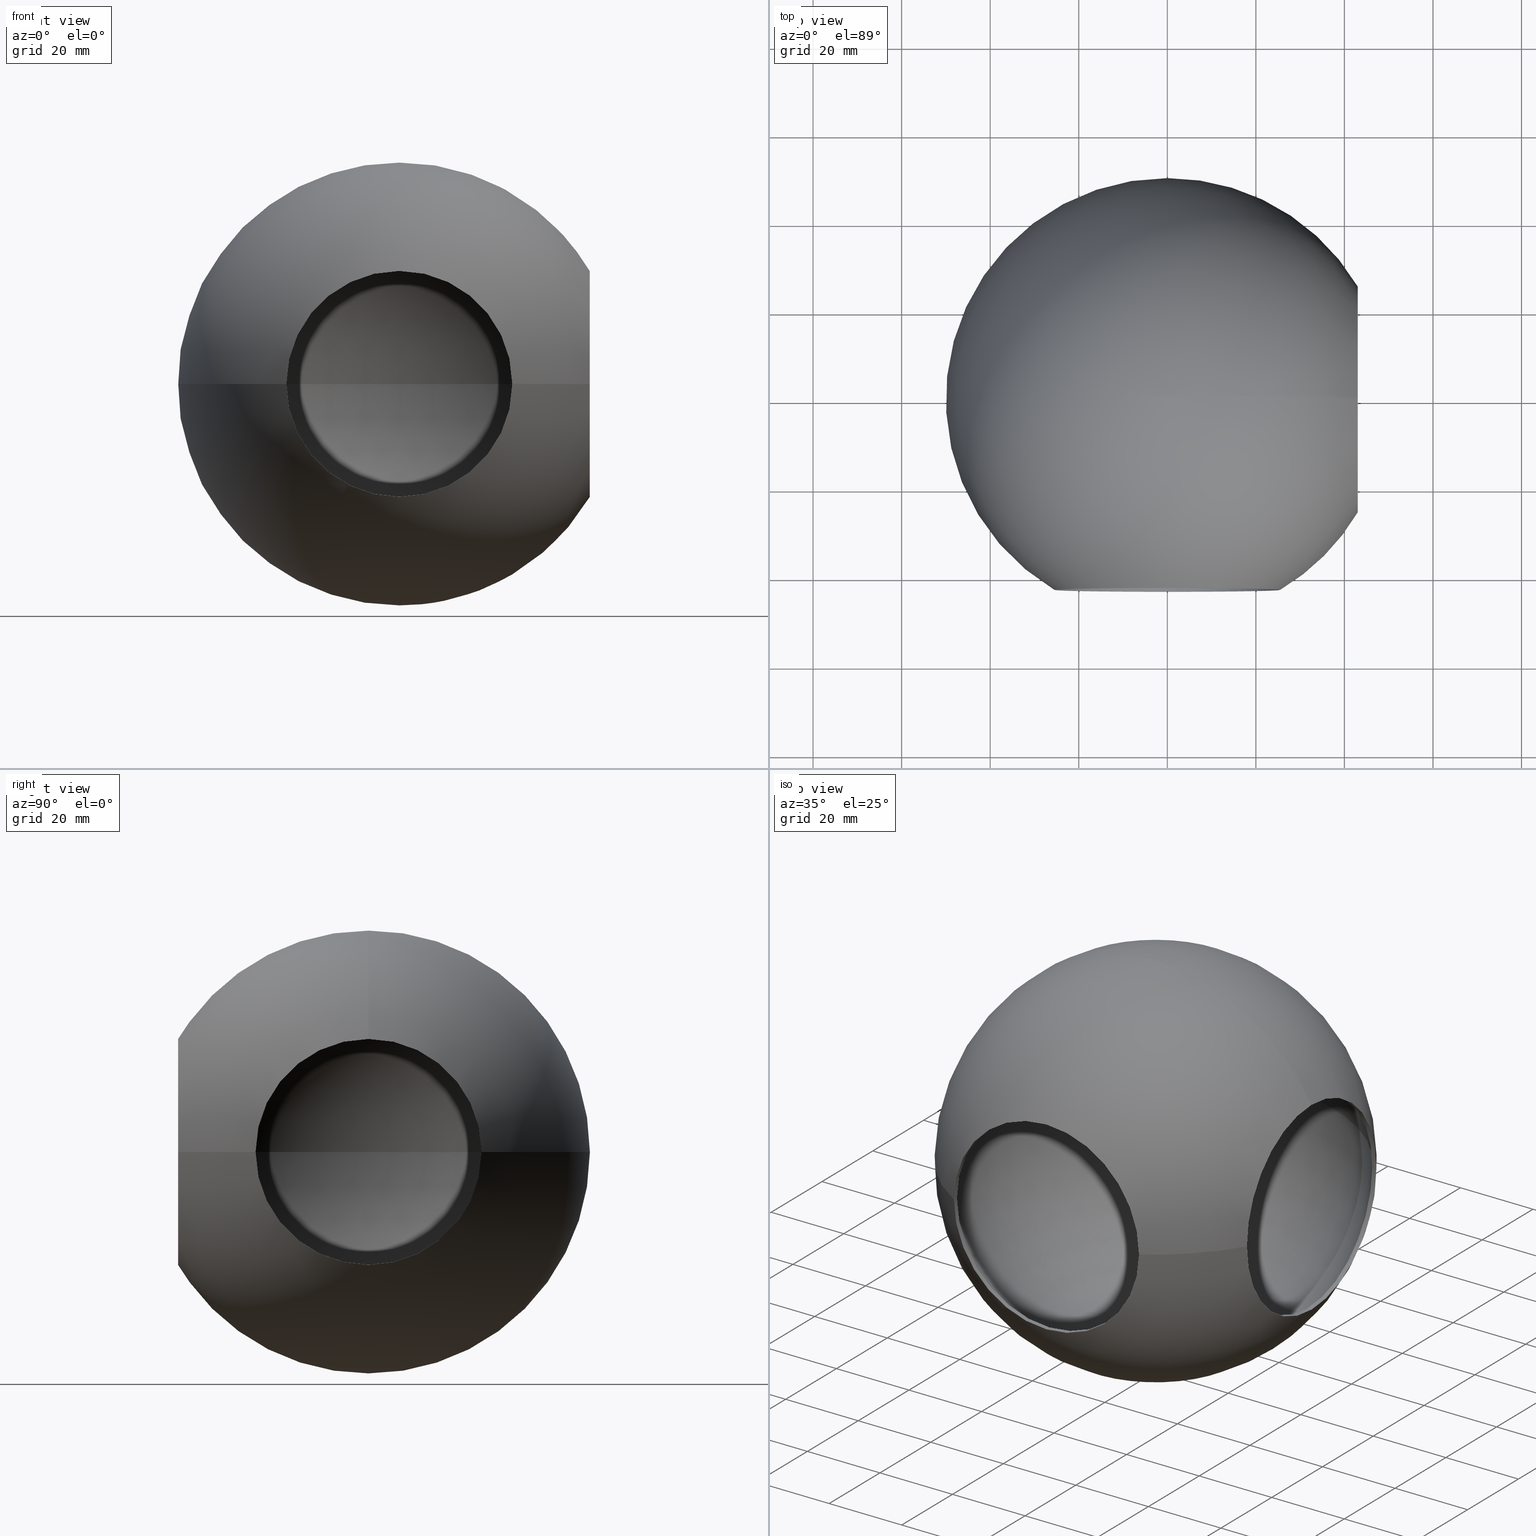
[diagram: canonical four-view strip — front | top / right | iso, engineering-drawing reading convention]
A machine part, canonical four-view strip (front | top / right | iso — engineering-drawing reading convention). The complete STEP part file that produces these views, byte-faithful:
ISO-10303-21;
HEADER;
FILE_DESCRIPTION (( 'STEP AP214' ),
    '1' );
FILE_NAME ('���. KRT313.STEP',
    '2014-07-01T06:49:35',
    ( '' ),
    ( '' ),
    'SwSTEP 2.0',
    'SolidWorks 2014',
    '' );
FILE_SCHEMA (( 'AUTOMOTIVE_DESIGN' ));
ENDSEC;

DATA;
#1 = ORIENTED_EDGE ( 'NONE', *, *, #179, .T. ) ;
#2 = VECTOR ( 'NONE', #336, 1000.000000000000000 ) ;
#3 = DIRECTION ( 'NONE',  ( 0.0000000000000000000, 1.000000000000000000, 0.0000000000000000000 ) ) ;
#4 = ORIENTED_EDGE ( 'NONE', *, *, #158, .T. ) ;
#5 = AXIS2_PLACEMENT_3D ( 'NONE', #328, #26, #28 ) ;
#6 = EDGE_CURVE ( 'NONE', #330, #152, #119, .T. ) ;
#7 = VERTEX_POINT ( 'NONE', #237 ) ;
#8 = EDGE_CURVE ( 'NONE', #208, #318, #205, .T. ) ;
#9 = DIRECTION ( 'NONE',  ( 0.0000000000000000000, -8.881784197001251300E-016, 1.000000000000000000 ) ) ;
#10 = ORIENTED_EDGE ( 'NONE', *, *, #311, .F. ) ;
#11 = DIRECTION ( 'NONE',  ( 0.0000000000000000000, -8.881784197001251300E-016, 1.000000000000000000 ) ) ;
#12 = CARTESIAN_POINT ( 'NONE',  ( 41.84196458102798700, -1.387778780781445700E-014, -25.50000000000000000 ) ) ;
#13 = PRESENTATION_LAYER_ASSIGNMENT (  '', '', ( #265 ) ) ;
#14 = ORIENTED_EDGE ( 'NONE', *, *, #232, .T. ) ;
#15 = DIRECTION ( 'NONE',  ( 0.0000000000000000000, 0.0000000000000000000, 1.000000000000000000 ) ) ;
#16 = UNCERTAINTY_MEASURE_WITH_UNIT (LENGTH_MEASURE( 1.000000000000000100E-005 ), #246, 'distance_accuracy_value', 'NONE');
#17 = CIRCLE ( 'NONE', #314, 25.50000000000000000 ) ;
#18 = EDGE_LOOP ( 'NONE', ( #65, #238, #185, #347, #280, #81 ) ) ;
#19 =( LENGTH_UNIT ( ) NAMED_UNIT ( * ) SI_UNIT ( .MILLI., .METRE. ) );
#20 = DIRECTION ( 'NONE',  ( -0.0000000000000000000, -1.000000000000000000, -0.0000000000000000000 ) ) ;
#21 = AXIS2_PLACEMENT_3D ( 'NONE', #107, #136, #248 ) ;
#22 = DIRECTION ( 'NONE',  ( -1.000000000000000000, 0.0000000000000000000, -1.224646799147353200E-016 ) ) ;
#23 = DIRECTION ( 'NONE',  ( 0.0000000000000000000, 0.0000000000000000000, 1.000000000000000000 ) ) ;
#24 = CARTESIAN_POINT ( 'NONE',  ( 0.0000000000000000000, 0.0000000000000000000, 0.0000000000000000000 ) ) ;
#25 = ORIENTED_EDGE ( 'NONE', *, *, #124, .T. ) ;
#26 = DIRECTION ( 'NONE',  ( 0.0000000000000000000, 0.0000000000000000000, -1.000000000000000000 ) ) ;
#27 = AXIS2_PLACEMENT_3D ( 'NONE', #130, #160, #351 ) ;
#28 = DIRECTION ( 'NONE',  ( 1.000000000000000000, 0.0000000000000000000, 0.0000000000000000000 ) ) ;
#29 = EDGE_CURVE ( 'NONE', #318, #45, #340, .T. ) ;
#30 = FACE_OUTER_BOUND ( 'NONE', #334, .T. ) ;
#31 = DIRECTION ( 'NONE',  ( 1.000000000000000000, 0.0000000000000000000, 0.0000000000000000000 ) ) ;
#32 = VERTEX_POINT ( 'NONE', #214 ) ;
#33 = EDGE_CURVE ( 'NONE', #275, #208, #129, .T. ) ;
#34 = ORIENTED_EDGE ( 'NONE', *, *, #179, .F. ) ;
#35 = ORIENTED_EDGE ( 'NONE', *, *, #225, .T. ) ;
#36 = PRESENTATION_LAYER_ASSIGNMENT (  '', '', ( #72 ) ) ;
#37 = SURFACE_STYLE_FILL_AREA ( #352 ) ;
#38 = CARTESIAN_POINT ( 'NONE',  ( 43.00872004605578500, -1.387778780781445700E-014, 0.0000000000000000000 ) ) ;
#39 = ORIENTED_EDGE ( 'NONE', *, *, #29, .T. ) ;
#40 = CARTESIAN_POINT ( 'NONE',  ( 41.84196458102798700, -1.387778780781445700E-014, 0.0000000000000000000 ) ) ;
#41 = AXIS2_PLACEMENT_3D ( 'NONE', #24, #53, #308 ) ;
#42 = VERTEX_POINT ( 'NONE', #296 ) ;
#43 = VECTOR ( 'NONE', #135, 1000.000000000000000 ) ;
#44 =( GEOMETRIC_REPRESENTATION_CONTEXT ( 3 ) GLOBAL_UNCERTAINTY_ASSIGNED_CONTEXT ( ( #180 ) ) GLOBAL_UNIT_ASSIGNED_CONTEXT ( ( #19, #48, #301 ) ) REPRESENTATION_CONTEXT ( 'NONE', 'WORKASPACE' ) );
#45 = VERTEX_POINT ( 'NONE', #243 ) ;
#46 = EDGE_CURVE ( 'NONE', #32, #42, #165, .T. ) ;
#47 = CARTESIAN_POINT ( 'NONE',  ( 41.84196458102798700, -1.387778780781445700E-014, 0.0000000000000000000 ) ) ;
#48 =( NAMED_UNIT ( * ) PLANE_ANGLE_UNIT ( ) SI_UNIT ( $, .RADIAN. ) );
#49 = DIRECTION ( 'NONE',  ( -0.0000000000000000000, -1.000000000000000000, -0.0000000000000000000 ) ) ;
#50 = COLOUR_RGB ( '',0.7529411764705882200, 0.7529411764705882200, 0.7529411764705882200 ) ;
#51 = DIRECTION ( 'NONE',  ( 1.000000000000000000, -0.0000000000000000000, -0.0000000000000000000 ) ) ;
#52 = APPLICATION_CONTEXT ( 'automotive_design' ) ;
#53 = DIRECTION ( 'NONE',  ( 0.0000000000000000000, 0.0000000000000000000, 1.000000000000000000 ) ) ;
#54 = AXIS2_PLACEMENT_3D ( 'NONE', #91, #284, #176 ) ;
#55 = SURFACE_STYLE_USAGE ( .BOTH. , #87 ) ;
#56 = DIRECTION ( 'NONE',  ( 0.0000000000000000000, 0.0000000000000000000, 1.000000000000000000 ) ) ;
#57 = FACE_OUTER_BOUND ( 'NONE', #18, .T. ) ;
#58 = ADVANCED_BREP_SHAPE_REPRESENTATION ( '�. KRT313', ( #145, #126 ), #305 ) ;
#59 = ADVANCED_FACE ( 'NONE', ( #230 ), #206, .T. ) ;
#60 = CARTESIAN_POINT ( 'NONE',  ( 0.0000000000000000000, 0.0000000000000000000, 0.0000000000000000000 ) ) ;
#61 = EDGE_LOOP ( 'NONE', ( #259, #267, #62, #25, #356, #251 ) ) ;
#62 = ORIENTED_EDGE ( 'NONE', *, *, #8, .T. ) ;
#63 = AXIS2_PLACEMENT_3D ( 'NONE', #149, #90, #283 ) ;
#64 = EDGE_CURVE ( 'NONE', #7, #190, #197, .T. ) ;
#65 = ORIENTED_EDGE ( 'NONE', *, *, #324, .F. ) ;
#66 = FACE_OUTER_BOUND ( 'NONE', #345, .T. ) ;
#67 = AXIS2_PLACEMENT_3D ( 'NONE', #346, #182, #11 ) ;
#68 = SPHERICAL_SURFACE ( 'NONE', #268, 50.00000000000000000 ) ;
#69 = ORIENTED_EDGE ( 'NONE', *, *, #210, .T. ) ;
#70 = ORIENTED_EDGE ( 'NONE', *, *, #158, .F. ) ;
#71 = CARTESIAN_POINT ( 'NONE',  ( 0.0000000000000000000, -43.00872004605578500, -25.50000000000000000 ) ) ;
#72 = STYLED_ITEM ( 'NONE', ( #338 ), #58 ) ;
#73 = DIRECTION ( 'NONE',  ( 0.0000000000000000000, 0.0000000000000000000, 1.000000000000000000 ) ) ;
#74 = SHAPE_DEFINITION_REPRESENTATION ( #320, #58 ) ;
#75 = ORIENTED_EDGE ( 'NONE', *, *, #125, .T. ) ;
#76 = CIRCLE ( 'NONE', #67, 25.50000000000000000 ) ;
#77 = CARTESIAN_POINT ( 'NONE',  ( 0.0000000000000000000, -41.84196458102798700, 0.0000000000000000000 ) ) ;
#78 = DIRECTION ( 'NONE',  ( 0.0000000000000000000, 1.000000000000000000, 0.0000000000000000000 ) ) ;
#79 = CARTESIAN_POINT ( 'NONE',  ( 43.00872004605578500, -1.387778780781445700E-014, -25.50000000000000000 ) ) ;
#80 = FACE_OUTER_BOUND ( 'NONE', #215, .T. ) ;
#81 = ORIENTED_EDGE ( 'NONE', *, *, #64, .F. ) ;
#82 = DIRECTION ( 'NONE',  ( 0.0000000000000000000, 1.000000000000000000, 0.0000000000000000000 ) ) ;
#83 = AXIS2_PLACEMENT_3D ( 'NONE', #38, #240, #73 ) ;
#84 = DIRECTION ( 'NONE',  ( 1.000000000000000000, 0.0000000000000000000, 0.0000000000000000000 ) ) ;
#85 = EDGE_CURVE ( 'NONE', #122, #101, #123, .T. ) ;
#86 = DIRECTION ( 'NONE',  ( 0.0000000000000000000, 0.0000000000000000000, -1.000000000000000000 ) ) ;
#87 = SURFACE_SIDE_STYLE ('',( #310 ) ) ;
#88 = CIRCLE ( 'NONE', #150, 49.00000000000000000 ) ;
#89 = CARTESIAN_POINT ( 'NONE',  ( 3.000384657911015500E-015, 49.00000000000000000, 0.0000000000000000000 ) ) ;
#90 = DIRECTION ( 'NONE',  ( 0.0000000000000000000, 0.0000000000000000000, 1.000000000000000000 ) ) ;
#91 = CARTESIAN_POINT ( 'NONE',  ( 0.0000000000000000000, 72.12489168102783300, 0.0000000000000000000 ) ) ;
#92 = CIRCLE ( 'NONE', #262, 25.50000000000000000 ) ;
#93 = ORIENTED_EDGE ( 'NONE', *, *, #46, .T. ) ;
#94 = VERTEX_POINT ( 'NONE', #353 ) ;
#95 = AXIS2_PLACEMENT_3D ( 'NONE', #112, #3, #23 ) ;
#96 = CIRCLE ( 'NONE', #295, 25.50000000000000000 ) ;
#97 = ORIENTED_EDGE ( 'NONE', *, *, #324, .T. ) ;
#98 = PRODUCT_DEFINITION_FORMATION_WITH_SPECIFIED_SOURCE ( 'ANY', '', #201, .NOT_KNOWN. ) ;
#99 = AXIS2_PLACEMENT_3D ( 'NONE', #60, #204, #31 ) ;
#100 = DIRECTION ( 'NONE',  ( 1.000000000000000000, -0.0000000000000000000, -0.0000000000000000000 ) ) ;
#101 = VERTEX_POINT ( 'NONE', #191 ) ;
#102 = CARTESIAN_POINT ( 'NONE',  ( 25.50000000000000000, -41.84196458102798700, 0.0000000000000000000 ) ) ;
#103 = PRODUCT_DEFINITION ( 'UNKNOWN', '', #98, #241 ) ;
#104 = CARTESIAN_POINT ( 'NONE',  ( 41.84196458102798700, -1.075493846998870700E-014, 25.50000000000000000 ) ) ;
#105 = CIRCLE ( 'NONE', #63, 50.00000000000000000 ) ;
#106 = ORIENTED_EDGE ( 'NONE', *, *, #348, .F. ) ;
#107 = CARTESIAN_POINT ( 'NONE',  ( 0.0000000000000000000, -43.00872004605578500, 0.0000000000000000000 ) ) ;
#108 =( LENGTH_UNIT ( ) NAMED_UNIT ( * ) SI_UNIT ( .MILLI., .METRE. ) );
#109 = DIRECTION ( 'NONE',  ( 1.000000000000000000, 0.0000000000000000000, 0.0000000000000000000 ) ) ;
#110 = DIRECTION ( 'NONE',  ( 0.0000000000000000000, 0.0000000000000000000, 1.000000000000000000 ) ) ;
#111 = CARTESIAN_POINT ( 'NONE',  ( 0.0000000000000000000, 72.12489168102783300, -25.50000000000000000 ) ) ;
#112 = CARTESIAN_POINT ( 'NONE',  ( 0.0000000000000000000, -41.84196458102798700, 0.0000000000000000000 ) ) ;
#113 = ORIENTED_EDGE ( 'NONE', *, *, #8, .F. ) ;
#114 = ORIENTED_EDGE ( 'NONE', *, *, #348, .T. ) ;
#115 = FILL_AREA_STYLE ('',( #270 ) ) ;
#116 = AXIS2_PLACEMENT_3D ( 'NONE', #199, #304, #84 ) ;
#117 = PRODUCT_CONTEXT ( 'NONE', #52, 'mechanical' ) ;
#118 = LINE ( 'NONE', #111, #263 ) ;
#119 = CIRCLE ( 'NONE', #294, 25.50000000000000000 ) ;
#120 = ORIENTED_EDGE ( 'NONE', *, *, #339, .F. ) ;
#121 = AXIS2_PLACEMENT_3D ( 'NONE', #142, #332, #219 ) ;
#122 = VERTEX_POINT ( 'NONE', #104 ) ;
#123 = LINE ( 'NONE', #331, #43 ) ;
#124 = EDGE_CURVE ( 'NONE', #318, #309, #118, .T. ) ;
#125 = EDGE_CURVE ( 'NONE', #287, #256, #134, .T. ) ;
#126 = AXIS2_PLACEMENT_3D ( 'NONE', #227, #139, #252 ) ;
#127 = ORIENTED_EDGE ( 'NONE', *, *, #339, .T. ) ;
#128 = CIRCLE ( 'NONE', #319, 25.50000000000000000 ) ;
#129 = CIRCLE ( 'NONE', #217, 25.50000000000000000 ) ;
#130 = CARTESIAN_POINT ( 'NONE',  ( 0.0000000000000000000, -41.84196458102798700, 0.0000000000000000000 ) ) ;
#131 = AXIS2_PLACEMENT_3D ( 'NONE', #167, #143, #357 ) ;
#132 = DIRECTION ( 'NONE',  ( 0.0000000000000000000, 0.0000000000000000000, 1.000000000000000000 ) ) ;
#133 = CARTESIAN_POINT ( 'NONE',  ( 3.122849337825750200E-015, -41.84196458102798700, 25.50000000000000000 ) ) ;
#134 = CIRCLE ( 'NONE', #21, 25.50000000000000000 ) ;
#135 = DIRECTION ( 'NONE',  ( 1.000000000000000000, 0.0000000000000000000, 0.0000000000000000000 ) ) ;
#136 = DIRECTION ( 'NONE',  ( 0.0000000000000000000, 1.000000000000000000, 0.0000000000000000000 ) ) ;
#137 = APPLICATION_PROTOCOL_DEFINITION ( 'draft international standard', 'automotive_design', 1998, #312 ) ;
#138 = DIRECTION ( 'NONE',  ( 1.000000000000000000, -0.0000000000000000000, -0.0000000000000000000 ) ) ;
#139 = DIRECTION ( 'NONE',  ( 0.0000000000000000000, 0.0000000000000000000, 1.000000000000000000 ) ) ;
#140 = ORIENTED_EDGE ( 'NONE', *, *, #46, .F. ) ;
#141 = MECHANICAL_DESIGN_GEOMETRIC_PRESENTATION_REPRESENTATION (  '', ( #72 ), #171 ) ;
#142 = CARTESIAN_POINT ( 'NONE',  ( 0.0000000000000000000, -1.387778780781445700E-014, 0.0000000000000000000 ) ) ;
#143 = DIRECTION ( 'NONE',  ( 0.0000000000000000000, 1.000000000000000000, 0.0000000000000000000 ) ) ;
#144 = DIRECTION ( 'NONE',  ( 0.0000000000000000000, 0.0000000000000000000, -1.000000000000000000 ) ) ;
#145 = MANIFOLD_SOLID_BREP ( '�����-�� ����������1', #212 ) ;
#146 = EDGE_CURVE ( 'NONE', #170, #122, #76, .T. ) ;
#147 = ORIENTED_EDGE ( 'NONE', *, *, #198, .F. ) ;
#148 = FACE_OUTER_BOUND ( 'NONE', #264, .T. ) ;
#149 = CARTESIAN_POINT ( 'NONE',  ( 0.0000000000000000000, 0.0000000000000000000, 0.0000000000000000000 ) ) ;
#150 = AXIS2_PLACEMENT_3D ( 'NONE', #168, #313, #253 ) ;
#151 = CIRCLE ( 'NONE', #116, 49.00000000000000000 ) ;
#152 = VERTEX_POINT ( 'NONE', #79 ) ;
#153 = UNCERTAINTY_MEASURE_WITH_UNIT (LENGTH_MEASURE( 1.000000000000000100E-005 ), #108, 'distance_accuracy_value', 'NONE');
#154 = AXIS2_PLACEMENT_3D ( 'NONE', #224, #20, #163 ) ;
#155 = COLOUR_RGB ( '',0.7529411764705882200, 0.7529411764705882200, 0.7529411764705882200 ) ;
#156 = EDGE_LOOP ( 'NONE', ( #175, #187, #34, #178, #349, #355 ) ) ;
#157 = AXIS2_PLACEMENT_3D ( 'NONE', #329, #271, #220 ) ;
#158 = EDGE_CURVE ( 'NONE', #208, #7, #350, .T. ) ;
#159 = DIRECTION ( 'NONE',  ( 0.0000000000000000000, 0.0000000000000000000, 1.000000000000000000 ) ) ;
#160 = DIRECTION ( 'NONE',  ( 0.0000000000000000000, 1.000000000000000000, 0.0000000000000000000 ) ) ;
#161 = CYLINDRICAL_SURFACE ( 'NONE', #228, 25.50000000000000000 ) ;
#162 = AXIS2_PLACEMENT_3D ( 'NONE', #239, #266, #15 ) ;
#163 = DIRECTION ( 'NONE',  ( 0.0000000000000000000, 0.0000000000000000000, -1.000000000000000000 ) ) ;
#164 = DIRECTION ( 'NONE',  ( 1.000000000000000000, -0.0000000000000000000, -0.0000000000000000000 ) ) ;
#165 = CIRCLE ( 'NONE', #157, 50.00000000000000000 ) ;
#166 = DIRECTION ( 'NONE',  ( 0.0000000000000000000, 0.0000000000000000000, -1.000000000000000000 ) ) ;
#167 = CARTESIAN_POINT ( 'NONE',  ( 0.0000000000000000000, -43.00872004605578500, 0.0000000000000000000 ) ) ;
#168 = CARTESIAN_POINT ( 'NONE',  ( 0.0000000000000000000, 0.0000000000000000000, 0.0000000000000000000 ) ) ;
#169 =( NAMED_UNIT ( * ) SI_UNIT ( $, .STERADIAN. ) SOLID_ANGLE_UNIT ( ) );
#170 = VERTEX_POINT ( 'NONE', #278 ) ;
#171 =( GEOMETRIC_REPRESENTATION_CONTEXT ( 3 ) GLOBAL_UNCERTAINTY_ASSIGNED_CONTEXT ( ( #153 ) ) GLOBAL_UNIT_ASSIGNED_CONTEXT ( ( #108, #335, #169 ) ) REPRESENTATION_CONTEXT ( 'NONE', 'WORKASPACE' ) );
#172 = CARTESIAN_POINT ( 'NONE',  ( 3.122849337825750200E-015, -43.00872004605578500, 25.50000000000000000 ) ) ;
#173 = DIRECTION ( 'NONE',  ( 0.0000000000000000000, 1.000000000000000000, 0.0000000000000000000 ) ) ;
#174 = PRESENTATION_STYLE_ASSIGNMENT (( #193 ) ) ;
#175 = ORIENTED_EDGE ( 'NONE', *, *, #85, .F. ) ;
#176 = DIRECTION ( 'NONE',  ( 0.0000000000000000000, 0.0000000000000000000, -1.000000000000000000 ) ) ;
#177 = AXIS2_PLACEMENT_3D ( 'NONE', #273, #166, #109 ) ;
#178 = ORIENTED_EDGE ( 'NONE', *, *, #181, .T. ) ;
#179 = EDGE_CURVE ( 'NONE', #190, #170, #189, .T. ) ;
#180 = UNCERTAINTY_MEASURE_WITH_UNIT (LENGTH_MEASURE( 1.000000000000000100E-005 ), #19, 'distance_accuracy_value', 'NONE');
#181 = EDGE_CURVE ( 'NONE', #190, #152, #254, .T. ) ;
#182 = DIRECTION ( 'NONE',  ( 1.000000000000000000, -0.0000000000000000000, -0.0000000000000000000 ) ) ;
#183 = PRODUCT_RELATED_PRODUCT_CATEGORY ( 'part', '', ( #201 ) ) ;
#184 = SPHERICAL_SURFACE ( 'NONE', #99, 49.00000000000000000 ) ;
#185 = ORIENTED_EDGE ( 'NONE', *, *, #311, .T. ) ;
#186 = DIRECTION ( 'NONE',  ( 1.000000000000000000, 0.0000000000000000000, 0.0000000000000000000 ) ) ;
#187 = ORIENTED_EDGE ( 'NONE', *, *, #146, .F. ) ;
#188 = ORIENTED_EDGE ( 'NONE', *, *, #290, .F. ) ;
#189 = CIRCLE ( 'NONE', #207, 25.50000000000000000 ) ;
#190 = VERTEX_POINT ( 'NONE', #12 ) ;
#191 = CARTESIAN_POINT ( 'NONE',  ( 43.00872004605578500, -1.075493846998870700E-014, 25.50000000000000000 ) ) ;
#192 = DIRECTION ( 'NONE',  ( 1.000000000000000000, -0.0000000000000000000, -0.0000000000000000000 ) ) ;
#193 = SURFACE_STYLE_USAGE ( .BOTH. , #244 ) ;
#194 = DIRECTION ( 'NONE',  ( 1.000000000000000000, 0.0000000000000000000, 0.0000000000000000000 ) ) ;
#195 = DIRECTION ( 'NONE',  ( 1.224646799147353200E-016, 0.0000000000000000000, -1.000000000000000000 ) ) ;
#196 = ORIENTED_EDGE ( 'NONE', *, *, #321, .F. ) ;
#197 = CIRCLE ( 'NONE', #233, 25.50000000000000000 ) ;
#198 = EDGE_CURVE ( 'NONE', #152, #32, #96, .T. ) ;
#199 = CARTESIAN_POINT ( 'NONE',  ( 0.0000000000000000000, 0.0000000000000000000, 0.0000000000000000000 ) ) ;
#200 = CARTESIAN_POINT ( 'NONE',  ( 0.0000000000000000000, -43.00872004605578500, 0.0000000000000000000 ) ) ;
#201 = PRODUCT ( '���. KRT313', '���. KRT313', '', ( #117 ) ) ;
#202 = CYLINDRICAL_SURFACE ( 'NONE', #154, 25.50000000000000000 ) ;
#203 = ORIENTED_EDGE ( 'NONE', *, *, #124, .F. ) ;
#204 = DIRECTION ( 'NONE',  ( 0.0000000000000000000, 0.0000000000000000000, -1.000000000000000000 ) ) ;
#205 = CIRCLE ( 'NONE', #27, 25.50000000000000000 ) ;
#206 = SPHERICAL_SURFACE ( 'NONE', #177, 50.00000000000000000 ) ;
#207 = AXIS2_PLACEMENT_3D ( 'NONE', #40, #326, #159 ) ;
#208 = VERTEX_POINT ( 'NONE', #102 ) ;
#209 = CIRCLE ( 'NONE', #131, 25.50000000000000000 ) ;
#210 = EDGE_CURVE ( 'NONE', #45, #213, #88, .T. ) ;
#211 = CARTESIAN_POINT ( 'NONE',  ( 0.0000000000000000000, -1.387778780781445700E-014, -25.50000000000000000 ) ) ;
#212 = CLOSED_SHELL ( 'NONE', ( #342, #341, #288, #261, #260, #344, #231, #59 ) ) ;
#213 = VERTEX_POINT ( 'NONE', #89 ) ;
#214 = CARTESIAN_POINT ( 'NONE',  ( 43.00872004605578500, 25.49999999999998900, 0.0000000000000000000 ) ) ;
#215 = EDGE_LOOP ( 'NONE', ( #293, #286, #113, #4, #222, #1, #317 ) ) ;
#216 = CYLINDRICAL_SURFACE ( 'NONE', #121, 25.50000000000000000 ) ;
#217 = AXIS2_PLACEMENT_3D ( 'NONE', #77, #82, #218 ) ;
#218 = DIRECTION ( 'NONE',  ( 0.0000000000000000000, 0.0000000000000000000, 1.000000000000000000 ) ) ;
#219 = DIRECTION ( 'NONE',  ( 0.0000000000000000000, 0.0000000000000000000, -1.000000000000000000 ) ) ;
#220 = DIRECTION ( 'NONE',  ( 1.000000000000000000, 0.0000000000000000000, 0.0000000000000000000 ) ) ;
#221 = CYLINDRICAL_SURFACE ( 'NONE', #54, 25.50000000000000000 ) ;
#222 = ORIENTED_EDGE ( 'NONE', *, *, #64, .T. ) ;
#223 = CARTESIAN_POINT ( 'NONE',  ( 0.0000000000000000000, 0.0000000000000000000, 0.0000000000000000000 ) ) ;
#224 = CARTESIAN_POINT ( 'NONE',  ( 0.0000000000000000000, 72.12489168102783300, 0.0000000000000000000 ) ) ;
#225 = EDGE_CURVE ( 'NONE', #45, #275, #354, .T. ) ;
#226 = CARTESIAN_POINT ( 'NONE',  ( 0.0000000000000000000, -1.387778780781445700E-014, 0.0000000000000000000 ) ) ;
#227 = CARTESIAN_POINT ( 'NONE',  ( 0.0000000000000000000, 0.0000000000000000000, 0.0000000000000000000 ) ) ;
#228 = AXIS2_PLACEMENT_3D ( 'NONE', #226, #358, #144 ) ;
#229 = VECTOR ( 'NONE', #186, 1000.000000000000000 ) ;
#230 = FACE_OUTER_BOUND ( 'NONE', #323, .T. ) ;
#231 = ADVANCED_FACE ( 'NONE', ( #281 ), #161, .F. ) ;
#232 = EDGE_CURVE ( 'NONE', #275, #287, #315, .T. ) ;
#233 = AXIS2_PLACEMENT_3D ( 'NONE', #47, #138, #297 ) ;
#234 = CIRCLE ( 'NONE', #242, 50.00000000000000000 ) ;
#235 = ORIENTED_EDGE ( 'NONE', *, *, #6, .F. ) ;
#236 = EDGE_CURVE ( 'NONE', #94, #287, #17, .T. ) ;
#237 = CARTESIAN_POINT ( 'NONE',  ( 41.84196458102798700, -25.50000000000000400, 0.0000000000000000000 ) ) ;
#238 = ORIENTED_EDGE ( 'NONE', *, *, #85, .T. ) ;
#239 = CARTESIAN_POINT ( 'NONE',  ( 0.0000000000000000000, -41.84196458102798700, 0.0000000000000000000 ) ) ;
#240 = DIRECTION ( 'NONE',  ( 1.000000000000000000, -0.0000000000000000000, -0.0000000000000000000 ) ) ;
#241 = PRODUCT_DEFINITION_CONTEXT ( 'detailed design', #312, 'design' ) ;
#242 = AXIS2_PLACEMENT_3D ( 'NONE', #223, #195, #22 ) ;
#243 = CARTESIAN_POINT ( 'NONE',  ( -25.50000000000000000, -41.84196458102798700, -3.122849337825750200E-015 ) ) ;
#244 = SURFACE_SIDE_STYLE ('',( #37 ) ) ;
#245 = ORIENTED_EDGE ( 'NONE', *, *, #257, .T. ) ;
#246 =( LENGTH_UNIT ( ) NAMED_UNIT ( * ) SI_UNIT ( .MILLI., .METRE. ) );
#247 =( NAMED_UNIT ( * ) PLANE_ANGLE_UNIT ( ) SI_UNIT ( $, .RADIAN. ) );
#248 = DIRECTION ( 'NONE',  ( 0.0000000000000000000, 0.0000000000000000000, 1.000000000000000000 ) ) ;
#249 = CARTESIAN_POINT ( 'NONE',  ( 0.0000000000000000000, -43.00872004605578500, 0.0000000000000000000 ) ) ;
#250 = ORIENTED_EDGE ( 'NONE', *, *, #146, .T. ) ;
#251 = ORIENTED_EDGE ( 'NONE', *, *, #125, .F. ) ;
#252 = DIRECTION ( 'NONE',  ( 1.000000000000000000, 0.0000000000000000000, 0.0000000000000000000 ) ) ;
#253 = DIRECTION ( 'NONE',  ( -1.000000000000000000, 0.0000000000000000000, -1.224646799147353200E-016 ) ) ;
#254 = LINE ( 'NONE', #211, #229 ) ;
#255 = AXIS2_PLACEMENT_3D ( 'NONE', #277, #192, #306 ) ;
#256 = VERTEX_POINT ( 'NONE', #282 ) ;
#257 = EDGE_CURVE ( 'NONE', #256, #330, #105, .T. ) ;
#258 = ORIENTED_EDGE ( 'NONE', *, *, #257, .F. ) ;
#259 = ORIENTED_EDGE ( 'NONE', *, *, #232, .F. ) ;
#260 = ADVANCED_FACE ( 'NONE', ( #80 ), #298, .F. ) ;
#261 = ADVANCED_FACE ( 'NONE', ( #148 ), #184, .F. ) ;
#262 = AXIS2_PLACEMENT_3D ( 'NONE', #249, #78, #110 ) ;
#263 = VECTOR ( 'NONE', #49, 1000.000000000000000 ) ;
#264 = EDGE_LOOP ( 'NONE', ( #325, #69, #196, #250, #97, #70, #274 ) ) ;
#265 = STYLED_ITEM ( 'NONE', ( #174 ), #145 ) ;
#266 = DIRECTION ( 'NONE',  ( 0.0000000000000000000, 1.000000000000000000, 0.0000000000000000000 ) ) ;
#267 = ORIENTED_EDGE ( 'NONE', *, *, #33, .T. ) ;
#268 = AXIS2_PLACEMENT_3D ( 'NONE', #272, #86, #194 ) ;
#269 = CARTESIAN_POINT ( 'NONE',  ( 43.00872004605578500, -1.387778780781445700E-014, 0.0000000000000000000 ) ) ;
#270 = FILL_AREA_STYLE_COLOUR ( '', #50 ) ;
#271 = DIRECTION ( 'NONE',  ( 0.0000000000000000000, 0.0000000000000000000, 1.000000000000000000 ) ) ;
#272 = CARTESIAN_POINT ( 'NONE',  ( 0.0000000000000000000, 0.0000000000000000000, 0.0000000000000000000 ) ) ;
#273 = CARTESIAN_POINT ( 'NONE',  ( 0.0000000000000000000, 0.0000000000000000000, 0.0000000000000000000 ) ) ;
#274 = ORIENTED_EDGE ( 'NONE', *, *, #33, .F. ) ;
#275 = VERTEX_POINT ( 'NONE', #133 ) ;
#276 = DIRECTION ( 'NONE',  ( 0.0000000000000000000, 0.0000000000000000000, 1.000000000000000000 ) ) ;
#277 = CARTESIAN_POINT ( 'NONE',  ( 41.84196458102798700, -1.387778780781445700E-014, 0.0000000000000000000 ) ) ;
#278 = CARTESIAN_POINT ( 'NONE',  ( 41.84196458102798700, 25.49999999999999300, 0.0000000000000000000 ) ) ;
#279 = APPLICATION_PROTOCOL_DEFINITION ( 'draft international standard', 'automotive_design', 1998, #52 ) ;
#280 = ORIENTED_EDGE ( 'NONE', *, *, #181, .F. ) ;
#281 = FACE_OUTER_BOUND ( 'NONE', #156, .T. ) ;
#282 = CARTESIAN_POINT ( 'NONE',  ( 25.49999999999999600, -43.00872004605578500, 0.0000000000000000000 ) ) ;
#283 = DIRECTION ( 'NONE',  ( 1.000000000000000000, 0.0000000000000000000, 0.0000000000000000000 ) ) ;
#284 = DIRECTION ( 'NONE',  ( -0.0000000000000000000, -1.000000000000000000, -0.0000000000000000000 ) ) ;
#285 = FACE_OUTER_BOUND ( 'NONE', #61, .T. ) ;
#286 = ORIENTED_EDGE ( 'NONE', *, *, #29, .F. ) ;
#287 = VERTEX_POINT ( 'NONE', #172 ) ;
#288 = ADVANCED_FACE ( 'NONE', ( #30 ), #221, .F. ) ;
#289 = CIRCLE ( 'NONE', #255, 25.50000000000000000 ) ;
#290 = EDGE_CURVE ( 'NONE', #32, #101, #128, .T. ) ;
#291 = MECHANICAL_DESIGN_GEOMETRIC_PRESENTATION_REPRESENTATION (  '', ( #265 ), #44 ) ;
#292 = ORIENTED_EDGE ( 'NONE', *, *, #236, .F. ) ;
#293 = ORIENTED_EDGE ( 'NONE', *, *, #210, .F. ) ;
#294 = AXIS2_PLACEMENT_3D ( 'NONE', #327, #100, #132 ) ;
#295 = AXIS2_PLACEMENT_3D ( 'NONE', #307, #51, #276 ) ;
#296 = CARTESIAN_POINT ( 'NONE',  ( 3.061616997868383000E-015, 50.00000000000000000, 0.0000000000000000000 ) ) ;
#297 = DIRECTION ( 'NONE',  ( 0.0000000000000000000, 0.0000000000000000000, 1.000000000000000000 ) ) ;
#298 = SPHERICAL_SURFACE ( 'NONE', #5, 49.00000000000000000 ) ;
#299 = CARTESIAN_POINT ( 'NONE',  ( 43.00872004605578500, -25.50000000000000400, 0.0000000000000000000 ) ) ;
#300 = ORIENTED_EDGE ( 'NONE', *, *, #236, .T. ) ;
#301 =( NAMED_UNIT ( * ) SI_UNIT ( $, .STERADIAN. ) SOLID_ANGLE_UNIT ( ) );
#302 =( NAMED_UNIT ( * ) SI_UNIT ( $, .STERADIAN. ) SOLID_ANGLE_UNIT ( ) );
#303 = FILL_AREA_STYLE_COLOUR ( '', #155 ) ;
#304 = DIRECTION ( 'NONE',  ( 0.0000000000000000000, 0.0000000000000000000, 1.000000000000000000 ) ) ;
#305 =( GEOMETRIC_REPRESENTATION_CONTEXT ( 3 ) GLOBAL_UNCERTAINTY_ASSIGNED_CONTEXT ( ( #16 ) ) GLOBAL_UNIT_ASSIGNED_CONTEXT ( ( #246, #247, #302 ) ) REPRESENTATION_CONTEXT ( 'NONE', 'WORKASPACE' ) );
#306 = DIRECTION ( 'NONE',  ( 0.0000000000000000000, 0.0000000000000000000, 1.000000000000000000 ) ) ;
#307 = CARTESIAN_POINT ( 'NONE',  ( 43.00872004605578500, -1.387778780781445700E-014, 0.0000000000000000000 ) ) ;
#308 = DIRECTION ( 'NONE',  ( 1.000000000000000000, 0.0000000000000000000, 0.0000000000000000000 ) ) ;
#309 = VERTEX_POINT ( 'NONE', #71 ) ;
#310 = SURFACE_STYLE_FILL_AREA ( #115 ) ;
#311 = EDGE_CURVE ( 'NONE', #101, #330, #322, .T. ) ;
#312 = APPLICATION_CONTEXT ( 'automotive_design' ) ;
#313 = DIRECTION ( 'NONE',  ( 1.224646799147353200E-016, 0.0000000000000000000, -1.000000000000000000 ) ) ;
#314 = AXIS2_PLACEMENT_3D ( 'NONE', #200, #173, #56 ) ;
#315 = LINE ( 'NONE', #337, #2 ) ;
#316 = CARTESIAN_POINT ( 'NONE',  ( 0.0000000000000000000, -41.84196458102798700, -25.50000000000000000 ) ) ;
#317 = ORIENTED_EDGE ( 'NONE', *, *, #321, .T. ) ;
#318 = VERTEX_POINT ( 'NONE', #316 ) ;
#319 = AXIS2_PLACEMENT_3D ( 'NONE', #269, #164, #9 ) ;
#320 = PRODUCT_DEFINITION_SHAPE ( 'NONE', 'NONE',  #103 ) ;
#321 = EDGE_CURVE ( 'NONE', #170, #213, #151, .T. ) ;
#322 = CIRCLE ( 'NONE', #83, 25.50000000000000000 ) ;
#323 = EDGE_LOOP ( 'NONE', ( #120, #300, #75, #245, #10, #188, #93 ) ) ;
#324 = EDGE_CURVE ( 'NONE', #122, #7, #289, .T. ) ;
#325 = ORIENTED_EDGE ( 'NONE', *, *, #225, .F. ) ;
#326 = DIRECTION ( 'NONE',  ( 1.000000000000000000, -0.0000000000000000000, -0.0000000000000000000 ) ) ;
#327 = CARTESIAN_POINT ( 'NONE',  ( 43.00872004605578500, -1.387778780781445700E-014, 0.0000000000000000000 ) ) ;
#328 = CARTESIAN_POINT ( 'NONE',  ( 0.0000000000000000000, 0.0000000000000000000, 0.0000000000000000000 ) ) ;
#329 = CARTESIAN_POINT ( 'NONE',  ( 0.0000000000000000000, 0.0000000000000000000, 0.0000000000000000000 ) ) ;
#330 = VERTEX_POINT ( 'NONE', #299 ) ;
#331 = CARTESIAN_POINT ( 'NONE',  ( 0.0000000000000000000, -1.075493846998870700E-014, 25.50000000000000000 ) ) ;
#332 = DIRECTION ( 'NONE',  ( 1.000000000000000000, 0.0000000000000000000, 0.0000000000000000000 ) ) ;
#333 = EDGE_CURVE ( 'NONE', #256, #309, #209, .T. ) ;
#334 = EDGE_LOOP ( 'NONE', ( #35, #14, #292, #106, #203, #39 ) ) ;
#335 =( NAMED_UNIT ( * ) PLANE_ANGLE_UNIT ( ) SI_UNIT ( $, .RADIAN. ) );
#336 = DIRECTION ( 'NONE',  ( -0.0000000000000000000, -1.000000000000000000, -0.0000000000000000000 ) ) ;
#337 = CARTESIAN_POINT ( 'NONE',  ( 3.122849337825750200E-015, 72.12489168102783300, 25.50000000000000000 ) ) ;
#338 = PRESENTATION_STYLE_ASSIGNMENT (( #55 ) ) ;
#339 = EDGE_CURVE ( 'NONE', #94, #42, #234, .T. ) ;
#340 = CIRCLE ( 'NONE', #162, 25.50000000000000000 ) ;
#341 = ADVANCED_FACE ( 'NONE', ( #57 ), #216, .F. ) ;
#342 = ADVANCED_FACE ( 'NONE', ( #66 ), #68, .T. ) ;
#343 = ORIENTED_EDGE ( 'NONE', *, *, #333, .T. ) ;
#344 = ADVANCED_FACE ( 'NONE', ( #285 ), #202, .F. ) ;
#345 = EDGE_LOOP ( 'NONE', ( #114, #127, #140, #147, #235, #258, #343 ) ) ;
#346 = CARTESIAN_POINT ( 'NONE',  ( 41.84196458102798700, -1.387778780781445700E-014, 0.0000000000000000000 ) ) ;
#347 = ORIENTED_EDGE ( 'NONE', *, *, #6, .T. ) ;
#348 = EDGE_CURVE ( 'NONE', #309, #94, #92, .T. ) ;
#349 = ORIENTED_EDGE ( 'NONE', *, *, #198, .T. ) ;
#350 = CIRCLE ( 'NONE', #41, 49.00000000000000000 ) ;
#351 = DIRECTION ( 'NONE',  ( 0.0000000000000000000, 0.0000000000000000000, 1.000000000000000000 ) ) ;
#352 = FILL_AREA_STYLE ('',( #303 ) ) ;
#353 = CARTESIAN_POINT ( 'NONE',  ( -25.49999999999999600, -43.00872004605578500, -3.122849337825750200E-015 ) ) ;
#354 = CIRCLE ( 'NONE', #95, 25.50000000000000000 ) ;
#355 = ORIENTED_EDGE ( 'NONE', *, *, #290, .T. ) ;
#356 = ORIENTED_EDGE ( 'NONE', *, *, #333, .F. ) ;
#357 = DIRECTION ( 'NONE',  ( 0.0000000000000000000, 0.0000000000000000000, 1.000000000000000000 ) ) ;
#358 = DIRECTION ( 'NONE',  ( 1.000000000000000000, 0.0000000000000000000, 0.0000000000000000000 ) ) ;
ENDSEC;
END-ISO-10303-21;
